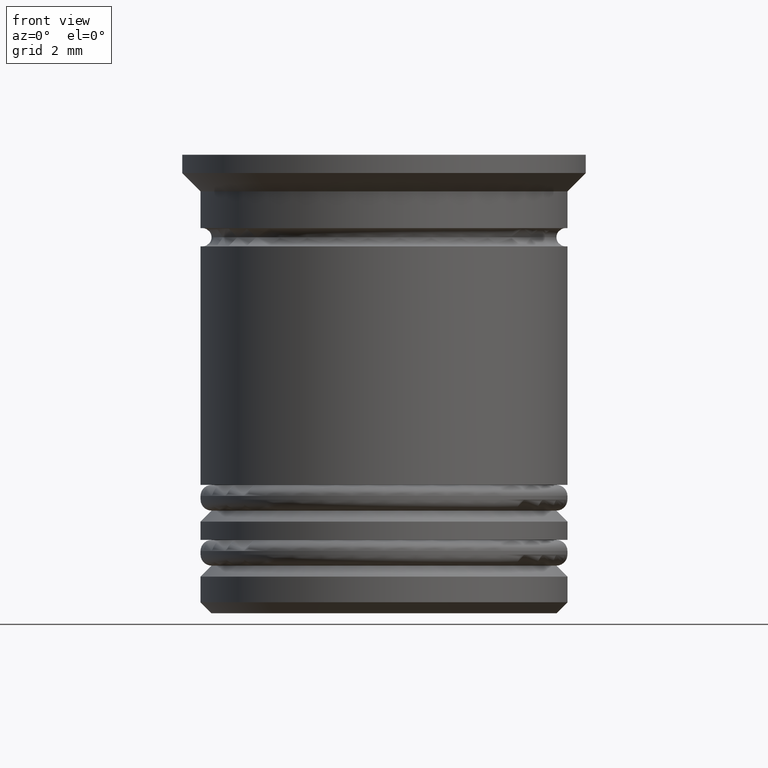
[diagram: clean part render]
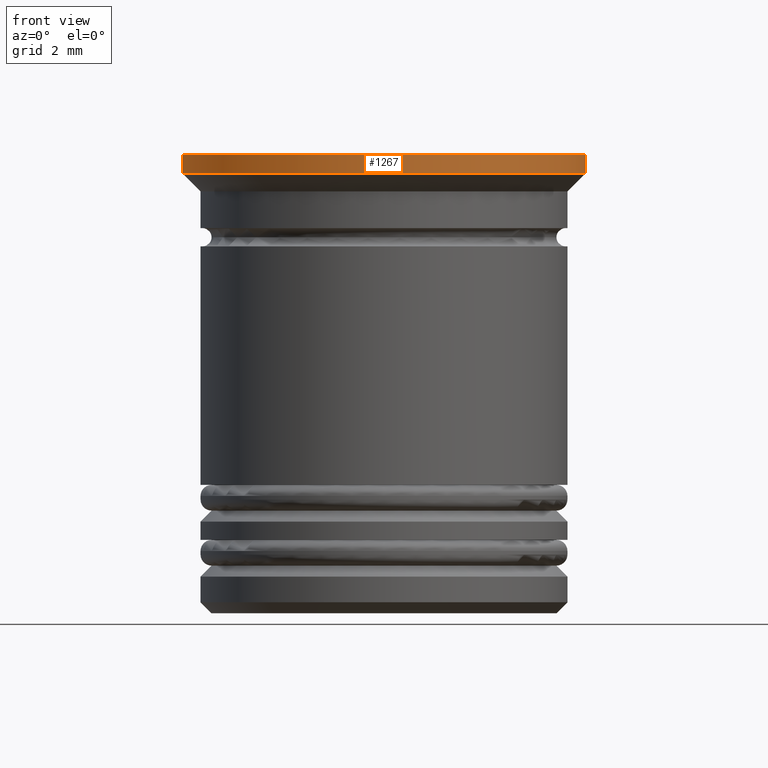
[diagram: same view with one face highlighted and labeled with its STEP entity id]
A machine part, front view. The second image highlights one B-rep face of the part: STEP entity #1267.
In plain terms, the highlighted cylindrical surface (partial cylindrical patch) has radius 5.5 mm, axis along (-0, -0, 1).
Its self-contained STEP definition (entity closure, byte-faithful):
#14 = CARTESIAN_POINT ( 'NONE',  ( -5.500000000000000000, 6.735557395310442023E-16, 0.000000000000000000 ) ) ;
#97 = VECTOR ( 'NONE', #494, 1000.000000000000000 ) ;
#143 = EDGE_CURVE ( 'NONE', #347, #1911, #403, .T. ) ;
#321 = VECTOR ( 'NONE', #1598, 1000.000000000000000 ) ;
#347 = VERTEX_POINT ( 'NONE', #1838 ) ;
#386 = ORIENTED_EDGE ( 'NONE', *, *, #1732, .F. ) ;
#395 = CARTESIAN_POINT ( 'NONE',  ( 0.000000000000000000, 0.000000000000000000, -0.4999999999999976130 ) ) ;
#403 = LINE ( 'NONE', #1041, #321 ) ;
#463 = EDGE_CURVE ( 'NONE', #1996, #1658, #1964, .T. ) ;
#494 = DIRECTION ( 'NONE',  ( -0.000000000000000000, -0.000000000000000000, 1.000000000000000000 ) ) ;
#525 = AXIS2_PLACEMENT_3D ( 'NONE', #604, #1401, #593 ) ;
#593 = DIRECTION ( 'NONE',  ( 1.000000000000000000, 0.000000000000000000, 0.000000000000000000 ) ) ;
#604 = CARTESIAN_POINT ( 'NONE',  ( 0.000000000000000000, 0.000000000000000000, 0.000000000000000000 ) ) ;
#661 = ORIENTED_EDGE ( 'NONE', *, *, #143, .T. ) ;
#728 = ORIENTED_EDGE ( 'NONE', *, *, #1441, .T. ) ;
#916 = FACE_OUTER_BOUND ( 'NONE', #1816, .T. ) ;
#933 = DIRECTION ( 'NONE',  ( -0.000000000000000000, -0.000000000000000000, 1.000000000000000000 ) ) ;
#1020 = DIRECTION ( 'NONE',  ( -0.000000000000000000, -0.000000000000000000, 1.000000000000000000 ) ) ;
#1041 = CARTESIAN_POINT ( 'NONE',  ( 5.500000000000000000, 0.000000000000000000, 0.000000000000000000 ) ) ;
#1228 = CYLINDRICAL_SURFACE ( 'NONE', #525, 5.500000000000000000 ) ;
#1267 = ADVANCED_FACE ( 'NONE', ( #916 ), #1228, .T. ) ;
#1349 = CARTESIAN_POINT ( 'NONE',  ( -5.500000000000000000, 6.735557395310442023E-16, -0.4999999999999976130 ) ) ;
#1355 = ORIENTED_EDGE ( 'NONE', *, *, #463, .F. ) ;
#1401 = DIRECTION ( 'NONE',  ( -0.000000000000000000, -0.000000000000000000, 1.000000000000000000 ) ) ;
#1440 = DIRECTION ( 'NONE',  ( 1.000000000000000000, 0.000000000000000000, 0.000000000000000000 ) ) ;
#1441 = EDGE_CURVE ( 'NONE', #1996, #347, #1799, .T. ) ;
#1511 = CARTESIAN_POINT ( 'NONE',  ( 5.500000000000000000, 0.000000000000000000, 0.000000000000000000 ) ) ;
#1530 = DIRECTION ( 'NONE',  ( -1.000000000000000000, 0.000000000000000000, 0.000000000000000000 ) ) ;
#1598 = DIRECTION ( 'NONE',  ( -0.000000000000000000, -0.000000000000000000, 1.000000000000000000 ) ) ;
#1607 = AXIS2_PLACEMENT_3D ( 'NONE', #395, #1020, #1530 ) ;
#1658 = VERTEX_POINT ( 'NONE', #1959 ) ;
#1732 = EDGE_CURVE ( 'NONE', #1658, #1911, #2078, .T. ) ;
#1799 = CIRCLE ( 'NONE', #1607, 5.500000000000000000 ) ;
#1816 = EDGE_LOOP ( 'NONE', ( #1355, #728, #661, #386 ) ) ;
#1838 = CARTESIAN_POINT ( 'NONE',  ( 5.500000000000000000, 0.000000000000000000, -0.4999999999999976130 ) ) ;
#1877 = AXIS2_PLACEMENT_3D ( 'NONE', #1900, #933, #1440 ) ;
#1900 = CARTESIAN_POINT ( 'NONE',  ( 0.000000000000000000, 0.000000000000000000, 0.000000000000000000 ) ) ;
#1911 = VERTEX_POINT ( 'NONE', #1511 ) ;
#1959 = CARTESIAN_POINT ( 'NONE',  ( -5.500000000000000000, 6.735557395310442023E-16, 0.000000000000000000 ) ) ;
#1964 = LINE ( 'NONE', #14, #97 ) ;
#1996 = VERTEX_POINT ( 'NONE', #1349 ) ;
#2078 = CIRCLE ( 'NONE', #1877, 5.500000000000000000 ) ;